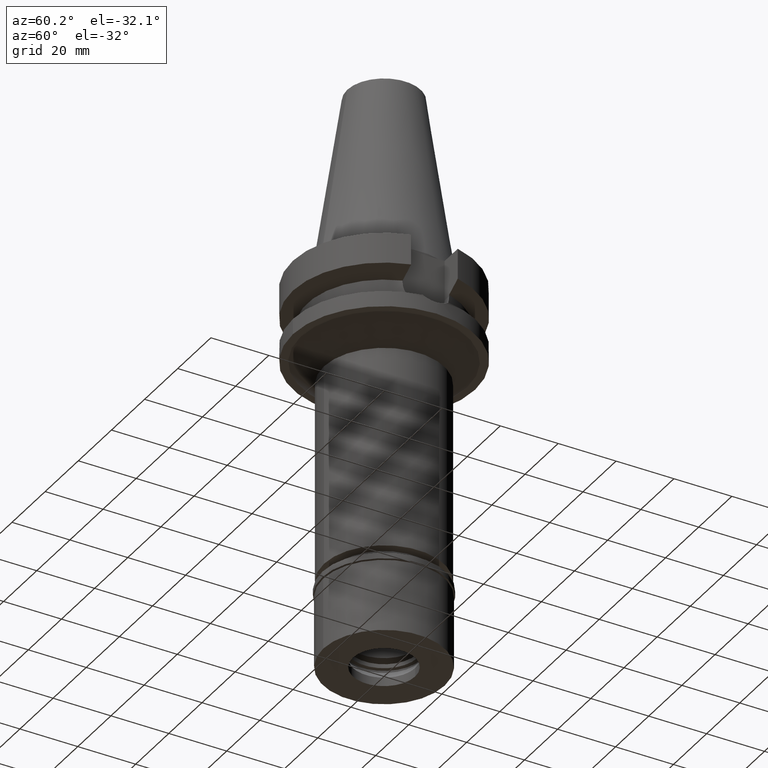
[diagram: clean part render]
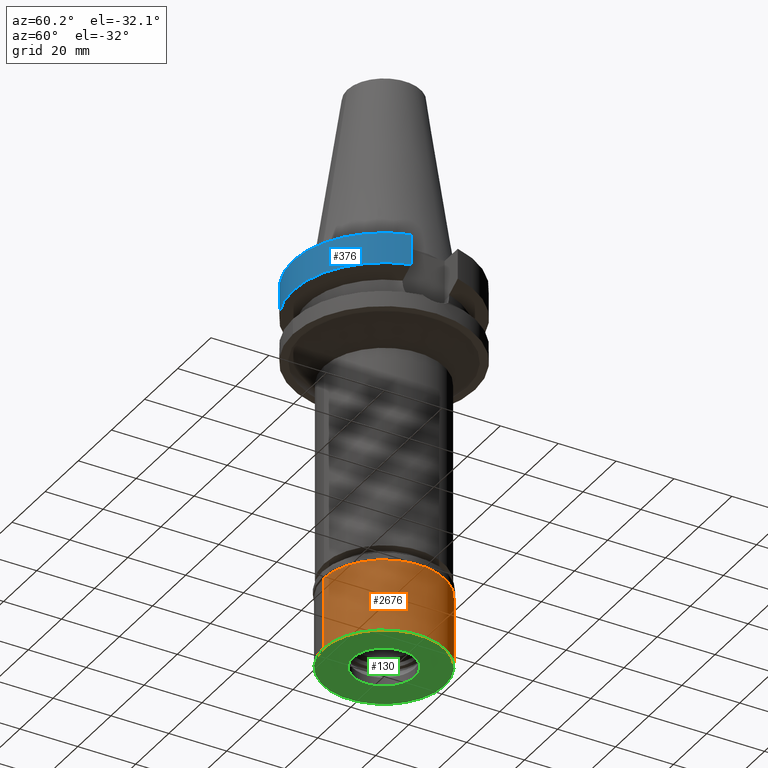
[diagram: same view with three faces highlighted in distinct colors, each labeled with its STEP entity id]
A machine part, auxiliary view with three faces highlighted in distinct colors.
Their STEP definitions:

[orange] entity #2676 — the highlighted cylindrical surface (partial cylindrical patch) has radius 21 mm, axis along (0, 0, -1).
#47 = CARTESIAN_POINT ( 'NONE',  ( 0.0000000000000000000, 21.00000000000000000, -2.299999999999999822 ) ) ;
#48 = CARTESIAN_POINT ( 'NONE',  ( 0.0000000000000000000, -21.00000000000000000, -2.299999999999999822 ) ) ;
#403 = VERTEX_POINT ( 'NONE', #1235 ) ;
#597 = DIRECTION ( 'NONE',  ( 0.0000000000000000000, 0.0000000000000000000, -1.000000000000000000 ) ) ;
#609 = EDGE_CURVE ( 'NONE', #1397, #1765, #2998, .T. ) ;
#647 = DIRECTION ( 'NONE',  ( 0.0000000000000000000, 0.0000000000000000000, -1.000000000000000000 ) ) ;
#650 = EDGE_CURVE ( 'NONE', #403, #1765, #971, .T. ) ;
#724 = CIRCLE ( 'NONE', #2287, 21.00000000000000000 ) ;
#789 = EDGE_CURVE ( 'NONE', #1397, #2849, #724, .T. ) ;
#827 = DIRECTION ( 'NONE',  ( 0.0000000000000000000, -1.000000000000000000, 0.0000000000000000000 ) ) ;
#971 = CIRCLE ( 'NONE', #2541, 21.00000000000000000 ) ;
#987 = DIRECTION ( 'NONE',  ( 0.0000000000000000000, 0.0000000000000000000, -1.000000000000000000 ) ) ;
#1140 = CYLINDRICAL_SURFACE ( 'NONE', #1972, 21.00000000000000000 ) ;
#1148 = CARTESIAN_POINT ( 'NONE',  ( 0.0000000000000000000, 0.0000000000000000000, -2.299999999999999822 ) ) ;
#1235 = CARTESIAN_POINT ( 'NONE',  ( 0.0000000000000000000, -21.00000000000000000, -27.09999999999999787 ) ) ;
#1252 = DIRECTION ( 'NONE',  ( 0.0000000000000000000, 1.000000000000000000, 0.0000000000000000000 ) ) ;
#1397 = VERTEX_POINT ( 'NONE', #47 ) ;
#1416 = CARTESIAN_POINT ( 'NONE',  ( 0.0000000000000000000, 0.0000000000000000000, -27.09999999999999787 ) ) ;
#1538 = CARTESIAN_POINT ( 'NONE',  ( 0.0000000000000000000, 21.00000000000000000, -2.299999999999999822 ) ) ;
#1765 = VERTEX_POINT ( 'NONE', #1909 ) ;
#1772 = DIRECTION ( 'NONE',  ( 0.0000000000000000000, 0.0000000000000000000, -1.000000000000000000 ) ) ;
#1838 = ORIENTED_EDGE ( 'NONE', *, *, #2588, .T. ) ;
#1848 = LINE ( 'NONE', #2758, #2716 ) ;
#1909 = CARTESIAN_POINT ( 'NONE',  ( 0.0000000000000000000, 21.00000000000000000, -27.09999999999999787 ) ) ;
#1972 = AXIS2_PLACEMENT_3D ( 'NONE', #2809, #647, #827 ) ;
#2287 = AXIS2_PLACEMENT_3D ( 'NONE', #1148, #987, #1252 ) ;
#2342 = VECTOR ( 'NONE', #1772, 1000.000000000000000 ) ;
#2533 = FACE_OUTER_BOUND ( 'NONE', #3010, .T. ) ;
#2541 = AXIS2_PLACEMENT_3D ( 'NONE', #1416, #2594, #3045 ) ;
#2588 = EDGE_CURVE ( 'NONE', #2849, #403, #1848, .T. ) ;
#2594 = DIRECTION ( 'NONE',  ( 0.0000000000000000000, 0.0000000000000000000, 1.000000000000000000 ) ) ;
#2617 = ORIENTED_EDGE ( 'NONE', *, *, #789, .T. ) ;
#2618 = ORIENTED_EDGE ( 'NONE', *, *, #609, .F. ) ;
#2676 = ADVANCED_FACE ( 'NONE', ( #2533 ), #1140, .T. ) ;
#2716 = VECTOR ( 'NONE', #597, 1000.000000000000000 ) ;
#2758 = CARTESIAN_POINT ( 'NONE',  ( 0.0000000000000000000, -21.00000000000000000, -2.299999999999999822 ) ) ;
#2809 = CARTESIAN_POINT ( 'NONE',  ( 0.0000000000000000000, 0.0000000000000000000, 0.0000000000000000000 ) ) ;
#2849 = VERTEX_POINT ( 'NONE', #48 ) ;
#2998 = LINE ( 'NONE', #1538, #2342 ) ;
#3010 = EDGE_LOOP ( 'NONE', ( #2617, #1838, #3062, #2618 ) ) ;
#3045 = DIRECTION ( 'NONE',  ( 0.0000000000000000000, -1.000000000000000000, 0.0000000000000000000 ) ) ;
#3062 = ORIENTED_EDGE ( 'NONE', *, *, #650, .T. ) ;

[blue] entity #376 — the highlighted cylindrical surface (partial cylindrical patch) has radius 31.5 mm, axis along (0, 0, -1).
#2 = VERTEX_POINT ( 'NONE', #2759 ) ;
#7 = CARTESIAN_POINT ( 'NONE',  ( 0.0000000000000000000, 0.0000000000000000000, -1.000000000000000000 ) ) ;
#277 = DIRECTION ( 'NONE',  ( 0.0000000000000000000, 0.0000000000000000000, -1.000000000000000000 ) ) ;
#376 = ADVANCED_FACE ( 'NONE', ( #1700 ), #529, .T. ) ;
#380 = CARTESIAN_POINT ( 'NONE',  ( 0.0000000000000000000, 0.0000000000000000000, -11.56550565266999975 ) ) ;
#416 = VERTEX_POINT ( 'NONE', #2187 ) ;
#481 = CARTESIAN_POINT ( 'NONE',  ( -30.45402272279000044, -8.050000000000000711, -1.000000000000000000 ) ) ;
#529 = CYLINDRICAL_SURFACE ( 'NONE', #2730, 31.50000000000000000 ) ;
#645 = CARTESIAN_POINT ( 'NONE',  ( 30.45402272279000044, -8.050000000000000711, -1.000000000000000000 ) ) ;
#681 = DIRECTION ( 'NONE',  ( 0.0000000000000000000, 0.0000000000000000000, -1.000000000000000000 ) ) ;
#1163 = VECTOR ( 'NONE', #3096, 1000.000000000000114 ) ;
#1214 = ORIENTED_EDGE ( 'NONE', *, *, #2201, .F. ) ;
#1218 = DIRECTION ( 'NONE',  ( 0.0000000000000000000, -1.000000000000000000, 0.0000000000000000000 ) ) ;
#1362 = EDGE_CURVE ( 'NONE', #416, #1726, #1710, .T. ) ;
#1363 = CIRCLE ( 'NONE', #1755, 31.50000000000000000 ) ;
#1561 = CIRCLE ( 'NONE', #1870, 31.50000000000000000 ) ;
#1693 = ORIENTED_EDGE ( 'NONE', *, *, #2521, .T. ) ;
#1700 = FACE_OUTER_BOUND ( 'NONE', #2120, .T. ) ;
#1710 = LINE ( 'NONE', #2967, #1966 ) ;
#1718 = ORIENTED_EDGE ( 'NONE', *, *, #1362, .F. ) ;
#1726 = VERTEX_POINT ( 'NONE', #481 ) ;
#1755 = AXIS2_PLACEMENT_3D ( 'NONE', #7, #681, #3060 ) ;
#1842 = LINE ( 'NONE', #645, #1163 ) ;
#1870 = AXIS2_PLACEMENT_3D ( 'NONE', #380, #2329, #2278 ) ;
#1966 = VECTOR ( 'NONE', #2415, 1000.000000000000114 ) ;
#2037 = VERTEX_POINT ( 'NONE', #2963 ) ;
#2051 = ORIENTED_EDGE ( 'NONE', *, *, #2317, .T. ) ;
#2120 = EDGE_LOOP ( 'NONE', ( #1718, #1693, #1214, #2051 ) ) ;
#2187 = CARTESIAN_POINT ( 'NONE',  ( -30.45402291360999669, -8.049999278097001110, -11.56551215470000038 ) ) ;
#2201 = EDGE_CURVE ( 'NONE', #2, #2037, #1842, .T. ) ;
#2278 = DIRECTION ( 'NONE',  ( 0.0000000000000000000, -1.000000000000000000, 0.0000000000000000000 ) ) ;
#2317 = EDGE_CURVE ( 'NONE', #2, #1726, #1363, .T. ) ;
#2329 = DIRECTION ( 'NONE',  ( 0.0000000000000000000, 0.0000000000000000000, 1.000000000000000000 ) ) ;
#2415 = DIRECTION ( 'NONE',  ( 1.806084641762990494E-08, -6.832637883976962044E-08, 0.9999999999999974465 ) ) ;
#2521 = EDGE_CURVE ( 'NONE', #416, #2037, #1561, .T. ) ;
#2671 = CARTESIAN_POINT ( 'NONE',  ( 0.0000000000000000000, 0.0000000000000000000, 0.0000000000000000000 ) ) ;
#2730 = AXIS2_PLACEMENT_3D ( 'NONE', #2671, #277, #1218 ) ;
#2759 = CARTESIAN_POINT ( 'NONE',  ( 30.45402272279000044, -8.050000000000000711, -1.000000000000000000 ) ) ;
#2963 = CARTESIAN_POINT ( 'NONE',  ( 30.45402272279000044, -8.049999999999000622, -11.56550565266999975 ) ) ;
#2967 = CARTESIAN_POINT ( 'NONE',  ( -30.45402291360999669, -8.049999278097001110, -11.56551215470000038 ) ) ;
#3060 = DIRECTION ( 'NONE',  ( 0.0000000000000000000, -1.000000000000000000, 0.0000000000000000000 ) ) ;
#3096 = DIRECTION ( 'NONE',  ( -1.036717888862017777E-07, -3.922010822727068488E-07, -0.9999999999999177325 ) ) ;

[green] entity #130 — the highlighted planar face has unit normal (0, 0, -1).
#29 = AXIS2_PLACEMENT_3D ( 'NONE', #2211, #1956, #63 ) ;
#31 = FACE_OUTER_BOUND ( 'NONE', #2384, .T. ) ;
#33 = CARTESIAN_POINT ( 'NONE',  ( 0.0000000000000000000, 0.0000000000000000000, -27.09999999999999787 ) ) ;
#63 = DIRECTION ( 'NONE',  ( 0.0000000000000000000, -1.000000000000000000, 0.0000000000000000000 ) ) ;
#130 = ADVANCED_FACE ( 'NONE', ( #31, #1473 ), #1738, .T. ) ;
#182 = ORIENTED_EDGE ( 'NONE', *, *, #650, .F. ) ;
#355 = AXIS2_PLACEMENT_3D ( 'NONE', #605, #1568, #1836 ) ;
#403 = VERTEX_POINT ( 'NONE', #1235 ) ;
#605 = CARTESIAN_POINT ( 'NONE',  ( 0.0000000000000000000, 0.0000000000000000000, -27.09999999999999787 ) ) ;
#650 = EDGE_CURVE ( 'NONE', #403, #1765, #971, .T. ) ;
#737 = CARTESIAN_POINT ( 'NONE',  ( 0.0000000000000000000, 10.75000000000000000, -27.09999999999999787 ) ) ;
#836 = CARTESIAN_POINT ( 'NONE',  ( 0.0000000000000000000, 0.0000000000000000000, -27.09999999999999787 ) ) ;
#895 = EDGE_CURVE ( 'NONE', #1945, #1503, #973, .T. ) ;
#955 = EDGE_CURVE ( 'NONE', #1503, #1945, #2897, .T. ) ;
#971 = CIRCLE ( 'NONE', #2541, 21.00000000000000000 ) ;
#973 = CIRCLE ( 'NONE', #29, 10.75000000000000000 ) ;
#1031 = ORIENTED_EDGE ( 'NONE', *, *, #3086, .F. ) ;
#1235 = CARTESIAN_POINT ( 'NONE',  ( 0.0000000000000000000, -21.00000000000000000, -27.09999999999999787 ) ) ;
#1416 = CARTESIAN_POINT ( 'NONE',  ( 0.0000000000000000000, 0.0000000000000000000, -27.09999999999999787 ) ) ;
#1473 = FACE_BOUND ( 'NONE', #2401, .T. ) ;
#1503 = VERTEX_POINT ( 'NONE', #737 ) ;
#1568 = DIRECTION ( 'NONE',  ( 0.0000000000000000000, 0.0000000000000000000, 1.000000000000000000 ) ) ;
#1672 = ORIENTED_EDGE ( 'NONE', *, *, #895, .F. ) ;
#1720 = CIRCLE ( 'NONE', #355, 21.00000000000000000 ) ;
#1738 = PLANE ( 'NONE',  #1991 ) ;
#1765 = VERTEX_POINT ( 'NONE', #1909 ) ;
#1836 = DIRECTION ( 'NONE',  ( 0.0000000000000000000, 1.000000000000000000, 0.0000000000000000000 ) ) ;
#1909 = CARTESIAN_POINT ( 'NONE',  ( 0.0000000000000000000, 21.00000000000000000, -27.09999999999999787 ) ) ;
#1945 = VERTEX_POINT ( 'NONE', #1993 ) ;
#1956 = DIRECTION ( 'NONE',  ( 0.0000000000000000000, 0.0000000000000000000, -1.000000000000000000 ) ) ;
#1991 = AXIS2_PLACEMENT_3D ( 'NONE', #33, #2446, #2816 ) ;
#1993 = CARTESIAN_POINT ( 'NONE',  ( 0.0000000000000000000, -10.75000000000000000, -27.09999999999999787 ) ) ;
#2034 = AXIS2_PLACEMENT_3D ( 'NONE', #836, #2304, #2768 ) ;
#2211 = CARTESIAN_POINT ( 'NONE',  ( 0.0000000000000000000, 0.0000000000000000000, -27.09999999999999787 ) ) ;
#2304 = DIRECTION ( 'NONE',  ( 0.0000000000000000000, 0.0000000000000000000, -1.000000000000000000 ) ) ;
#2318 = ORIENTED_EDGE ( 'NONE', *, *, #955, .F. ) ;
#2384 = EDGE_LOOP ( 'NONE', ( #1031, #182 ) ) ;
#2401 = EDGE_LOOP ( 'NONE', ( #2318, #1672 ) ) ;
#2446 = DIRECTION ( 'NONE',  ( 0.0000000000000000000, 0.0000000000000000000, -1.000000000000000000 ) ) ;
#2541 = AXIS2_PLACEMENT_3D ( 'NONE', #1416, #2594, #3045 ) ;
#2594 = DIRECTION ( 'NONE',  ( 0.0000000000000000000, 0.0000000000000000000, 1.000000000000000000 ) ) ;
#2768 = DIRECTION ( 'NONE',  ( 0.0000000000000000000, 1.000000000000000000, 0.0000000000000000000 ) ) ;
#2816 = DIRECTION ( 'NONE',  ( 0.0000000000000000000, -1.000000000000000000, 0.0000000000000000000 ) ) ;
#2897 = CIRCLE ( 'NONE', #2034, 10.75000000000000000 ) ;
#3045 = DIRECTION ( 'NONE',  ( 0.0000000000000000000, -1.000000000000000000, 0.0000000000000000000 ) ) ;
#3086 = EDGE_CURVE ( 'NONE', #1765, #403, #1720, .T. ) ;